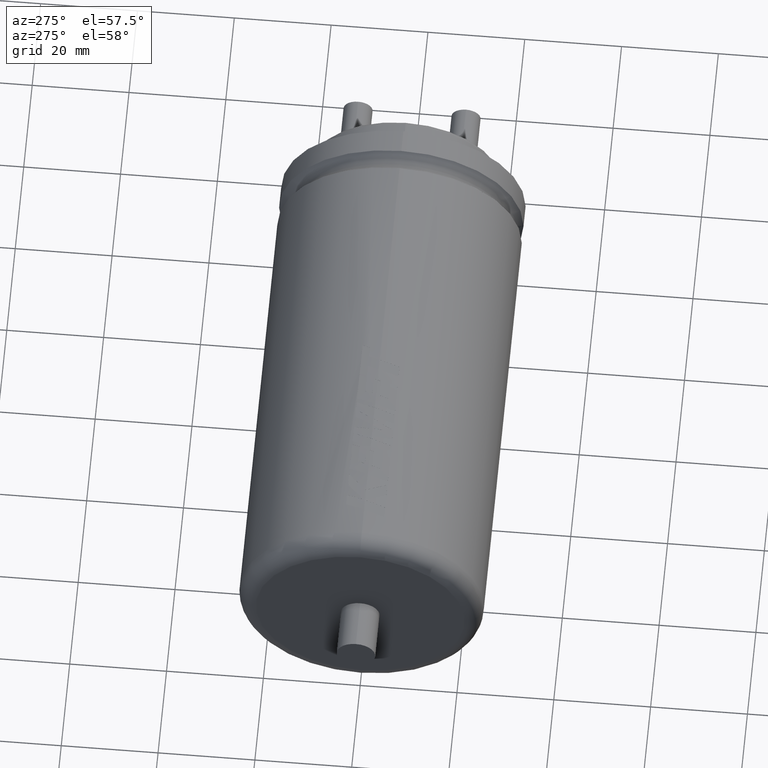
[diagram: clean part render]
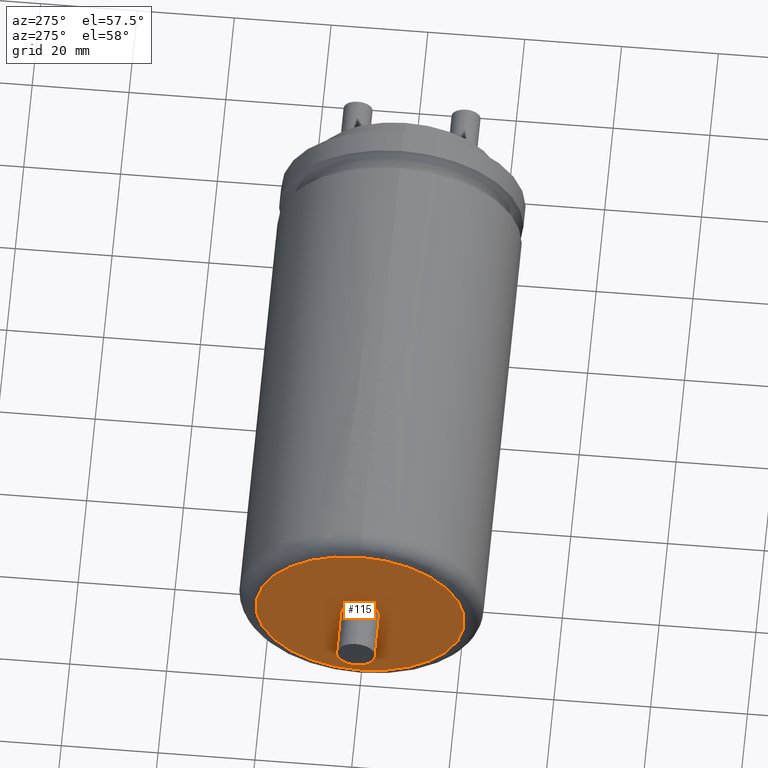
[diagram: same view with one face highlighted and labeled with its STEP entity id]
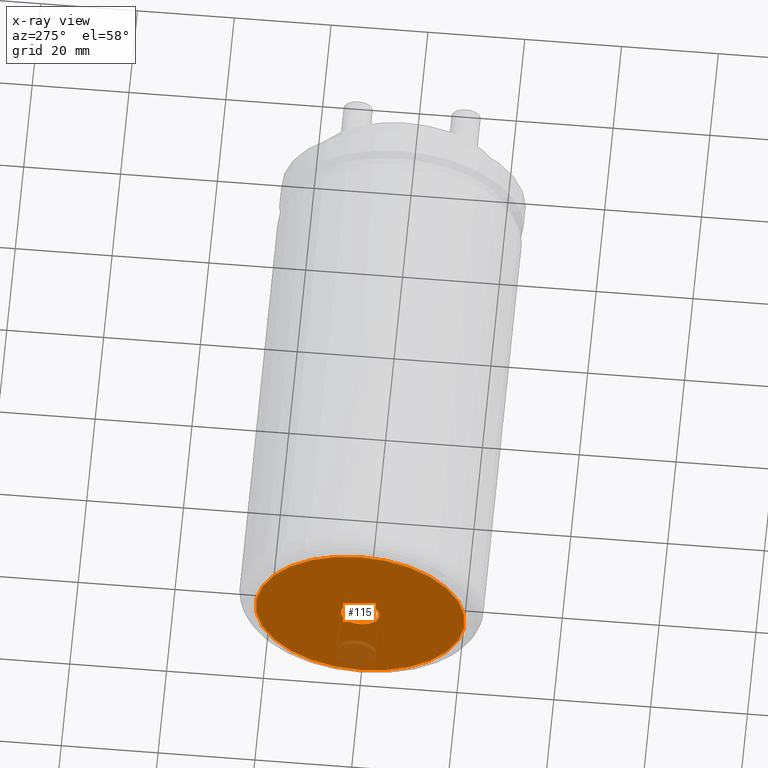
[diagram: x-ray of the same camera — body ghosted, the highlighted face saturated]
A machine part, auxiliary view. The second image highlights one B-rep face of the part: STEP entity #115.
The next image is the same camera in x-ray: the body ghosted, the highlighted face saturated — about 4% of this face is hidden behind the body in this view.
In plain terms, the highlighted planar face has unit normal (1, 0, 0).
Its self-contained STEP definition (entity closure, byte-faithful):
#115 = ADVANCED_FACE ( 'NONE', ( #2526, #769 ), #2188, .F. ) ;
#205 = CARTESIAN_POINT ( 'NONE',  ( 0.0000000000000000000, 0.0000000000000000000, 0.0000000000000000000 ) ) ;
#281 = VERTEX_POINT ( 'NONE', #3818 ) ;
#320 = DIRECTION ( 'NONE',  ( 0.0000000000000000000, 0.0000000000000000000, -1.000000000000000000 ) ) ;
#347 = CIRCLE ( 'NONE', #2217, 21.57290000000000400 ) ;
#407 = ORIENTED_EDGE ( 'NONE', *, *, #1766, .T. ) ;
#479 = CARTESIAN_POINT ( 'NONE',  ( 0.0000000000000000000, 0.0000000000000000000, 0.0000000000000000000 ) ) ;
#549 = DIRECTION ( 'NONE',  ( -1.000000000000000000, -0.0000000000000000000, -0.0000000000000000000 ) ) ;
#769 = FACE_BOUND ( 'NONE', #831, .T. ) ;
#831 = EDGE_LOOP ( 'NONE', ( #3725, #1892 ) ) ;
#1017 = EDGE_CURVE ( 'NONE', #3570, #1551, #347, .T. ) ;
#1148 = DIRECTION ( 'NONE',  ( -1.000000000000000000, -0.0000000000000000000, -0.0000000000000000000 ) ) ;
#1228 = DIRECTION ( 'NONE',  ( 0.0000000000000000000, 0.0000000000000000000, -1.000000000000000000 ) ) ;
#1373 = EDGE_CURVE ( 'NONE', #281, #3489, #1411, .T. ) ;
#1411 = CIRCLE ( 'NONE', #2832, 4.000000000000000000 ) ;
#1435 = DIRECTION ( 'NONE',  ( 0.0000000000000000000, 0.0000000000000000000, -1.000000000000000000 ) ) ;
#1550 = CARTESIAN_POINT ( 'NONE',  ( 0.0000000000000000000, 0.0000000000000000000, -4.000000000000000000 ) ) ;
#1551 = VERTEX_POINT ( 'NONE', #3751 ) ;
#1619 = AXIS2_PLACEMENT_3D ( 'NONE', #479, #1148, #1435 ) ;
#1766 = EDGE_CURVE ( 'NONE', #1551, #3570, #2450, .T. ) ;
#1813 = CARTESIAN_POINT ( 'NONE',  ( 0.0000000000000000000, 0.0000000000000000000, 0.0000000000000000000 ) ) ;
#1892 = ORIENTED_EDGE ( 'NONE', *, *, #1373, .F. ) ;
#1932 = CARTESIAN_POINT ( 'NONE',  ( 0.0000000000000000000, 0.0000000000000000000, -21.57290000000000400 ) ) ;
#1976 = DIRECTION ( 'NONE',  ( 0.0000000000000000000, 0.0000000000000000000, -1.000000000000000000 ) ) ;
#2055 = ORIENTED_EDGE ( 'NONE', *, *, #1017, .T. ) ;
#2188 = PLANE ( 'NONE',  #2657 ) ;
#2217 = AXIS2_PLACEMENT_3D ( 'NONE', #3654, #549, #2434 ) ;
#2337 = AXIS2_PLACEMENT_3D ( 'NONE', #205, #3611, #1976 ) ;
#2434 = DIRECTION ( 'NONE',  ( 0.0000000000000000000, 0.0000000000000000000, -1.000000000000000000 ) ) ;
#2450 = CIRCLE ( 'NONE', #1619, 21.57290000000000400 ) ;
#2468 = CARTESIAN_POINT ( 'NONE',  ( 0.0000000000000000000, 0.0000000000000000000, 0.0000000000000000000 ) ) ;
#2526 = FACE_OUTER_BOUND ( 'NONE', #2792, .T. ) ;
#2657 = AXIS2_PLACEMENT_3D ( 'NONE', #1813, #3087, #320 ) ;
#2778 = CIRCLE ( 'NONE', #2337, 4.000000000000000000 ) ;
#2792 = EDGE_LOOP ( 'NONE', ( #2055, #407 ) ) ;
#2832 = AXIS2_PLACEMENT_3D ( 'NONE', #2468, #3064, #1228 ) ;
#3064 = DIRECTION ( 'NONE',  ( -1.000000000000000000, -0.0000000000000000000, -0.0000000000000000000 ) ) ;
#3087 = DIRECTION ( 'NONE',  ( 1.000000000000000000, 0.0000000000000000000, 0.0000000000000000000 ) ) ;
#3489 = VERTEX_POINT ( 'NONE', #1550 ) ;
#3570 = VERTEX_POINT ( 'NONE', #1932 ) ;
#3611 = DIRECTION ( 'NONE',  ( -1.000000000000000000, -0.0000000000000000000, -0.0000000000000000000 ) ) ;
#3654 = CARTESIAN_POINT ( 'NONE',  ( 0.0000000000000000000, 0.0000000000000000000, 0.0000000000000000000 ) ) ;
#3725 = ORIENTED_EDGE ( 'NONE', *, *, #3766, .F. ) ;
#3751 = CARTESIAN_POINT ( 'NONE',  ( 0.0000000000000000000, 2.867075730589830500E-015, 21.57290000000000400 ) ) ;
#3766 = EDGE_CURVE ( 'NONE', #3489, #281, #2778, .T. ) ;
#3818 = CARTESIAN_POINT ( 'NONE',  ( 0.0000000000000000000, 4.898587196589412800E-016, 4.000000000000000000 ) ) ;